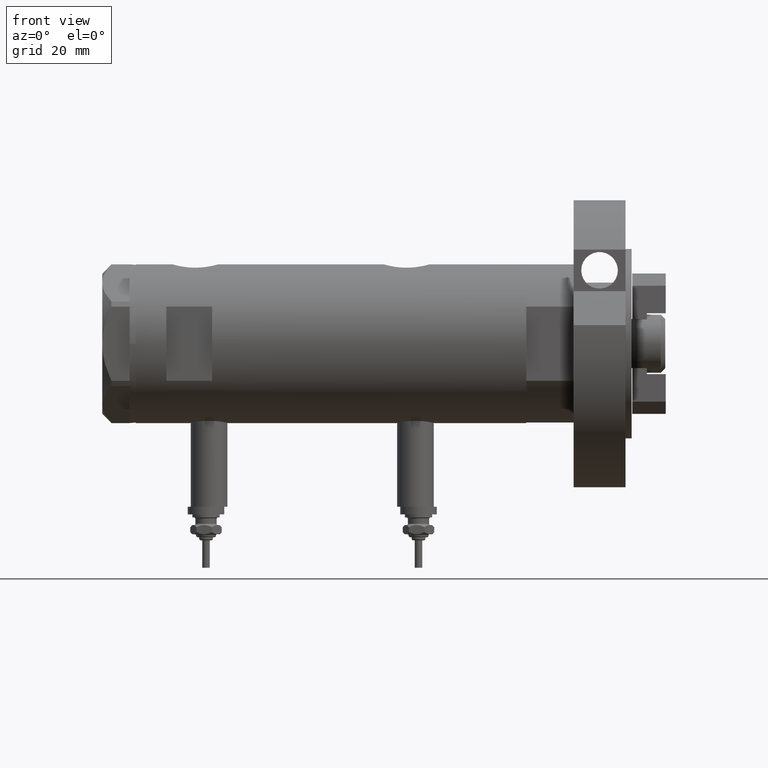
[diagram: clean part render]
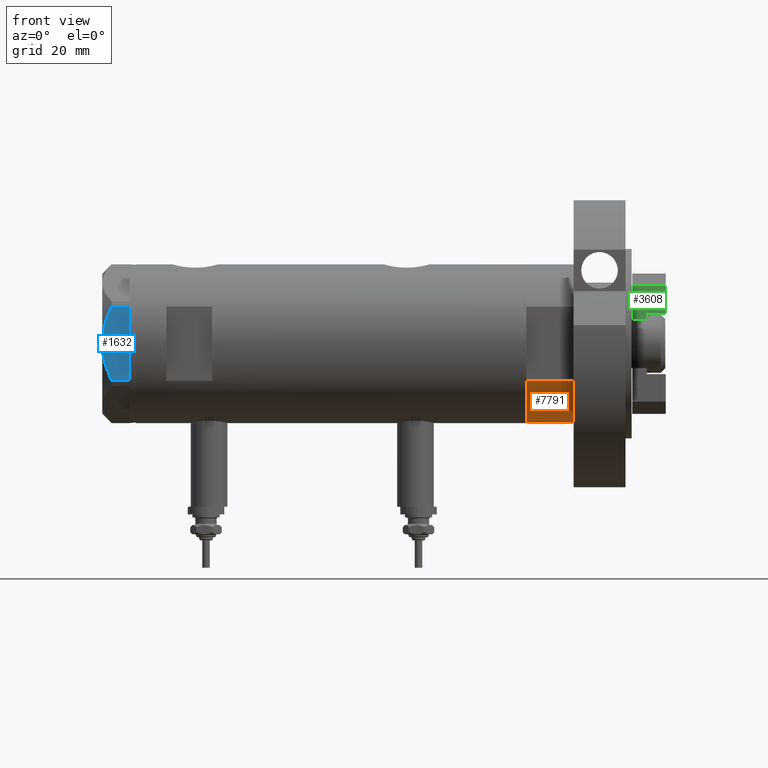
[diagram: same view with three faces highlighted in distinct colors, each labeled with its STEP entity id]
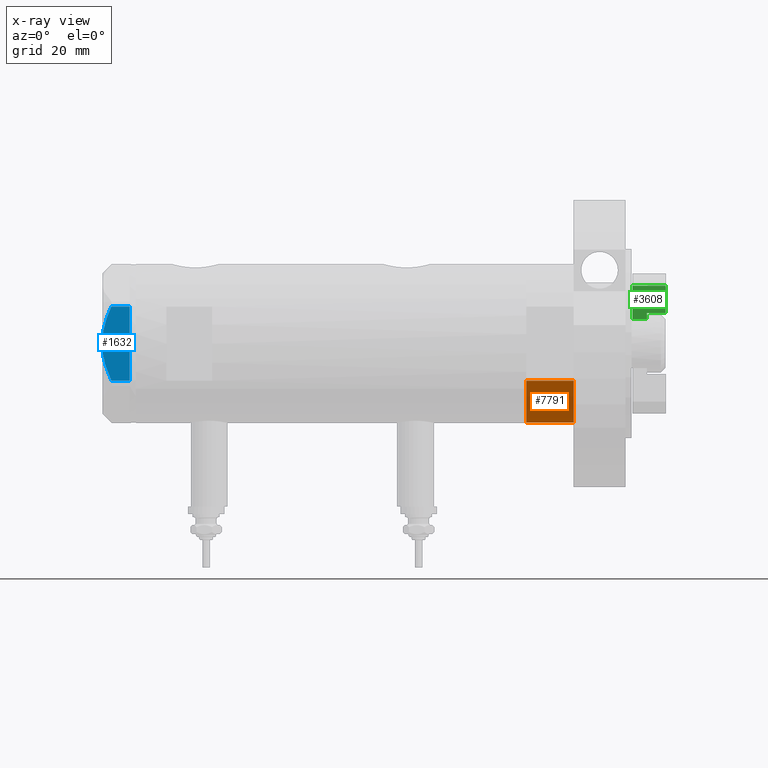
[diagram: x-ray of the same camera — body ghosted, the three highlighted faces saturated]
A machine part, front view with three faces highlighted in distinct colors.
The next image is the same camera in x-ray (body ghosted, the three faces saturated) — at least one of them is partly hidden behind the body in this view.
Their STEP definitions:

[orange] entity #7791 — the highlighted cylindrical surface (partial cylindrical patch) has radius 26 mm, axis along (-1, -0, 0).
#119 = AXIS2_PLACEMENT_3D ( 'NONE', #2990, #4516, #4435 ) ;
#154 = FACE_OUTER_BOUND ( 'NONE', #4499, .T. ) ;
#162 = ORIENTED_EDGE ( 'NONE', *, *, #4951, .F. ) ;
#253 = DIRECTION ( 'NONE',  ( -0.000000000000000000, -0.000000000000000000, 1.000000000000000000 ) ) ;
#562 = CARTESIAN_POINT ( 'NONE',  ( 12.12435565298215323, -22.99999999999999645, 15.50000000000000000 ) ) ;
#647 = DIRECTION ( 'NONE',  ( -1.000000000000000000, 0.000000000000000000, 0.000000000000000000 ) ) ;
#911 = LINE ( 'NONE', #3587, #5529 ) ;
#1189 = VERTEX_POINT ( 'NONE', #2438 ) ;
#1429 = CYLINDRICAL_SURFACE ( 'NONE', #6132, 26.00000000000000355 ) ;
#1453 = EDGE_CURVE ( 'NONE', #1189, #1968, #1991, .T. ) ;
#1519 = CIRCLE ( 'NONE', #119, 26.00000000000000355 ) ;
#1533 = ORIENTED_EDGE ( 'NONE', *, *, #1453, .T. ) ;
#1968 = VERTEX_POINT ( 'NONE', #4178 ) ;
#1991 = CIRCLE ( 'NONE', #7190, 26.00000000000000355 ) ;
#2438 = CARTESIAN_POINT ( 'NONE',  ( 12.12435565298215323, -22.99999999999999645, 0.000000000000000000 ) ) ;
#2990 = CARTESIAN_POINT ( 'NONE',  ( 0.000000000000000000, 0.000000000000000000, 15.50000000000000000 ) ) ;
#3274 = VERTEX_POINT ( 'NONE', #5771 ) ;
#3424 = ORIENTED_EDGE ( 'NONE', *, *, #8653, .F. ) ;
#3587 = CARTESIAN_POINT ( 'NONE',  ( 12.12435565298215323, -22.99999999999999645, 0.000000000000000000 ) ) ;
#4145 = DIRECTION ( 'NONE',  ( 0.000000000000000000, 0.000000000000000000, 1.000000000000000000 ) ) ;
#4178 = CARTESIAN_POINT ( 'NONE',  ( 12.12435565298214080, 23.00000000000000355, 0.000000000000000000 ) ) ;
#4435 = DIRECTION ( 'NONE',  ( 1.000000000000000000, 0.000000000000000000, 0.000000000000000000 ) ) ;
#4499 = EDGE_LOOP ( 'NONE', ( #3424, #162, #1533, #5266 ) ) ;
#4516 = DIRECTION ( 'NONE',  ( 0.000000000000000000, 0.000000000000000000, 1.000000000000000000 ) ) ;
#4951 = EDGE_CURVE ( 'NONE', #1189, #6178, #911, .T. ) ;
#5266 = ORIENTED_EDGE ( 'NONE', *, *, #5384, .T. ) ;
#5384 = EDGE_CURVE ( 'NONE', #1968, #3274, #7015, .T. ) ;
#5478 = CARTESIAN_POINT ( 'NONE',  ( 0.000000000000000000, 0.000000000000000000, 15.50000000000000000 ) ) ;
#5529 = VECTOR ( 'NONE', #253, 1000.000000000000000 ) ;
#5771 = CARTESIAN_POINT ( 'NONE',  ( 12.12435565298214790, 23.00000000000000355, 15.50000000000000000 ) ) ;
#6132 = AXIS2_PLACEMENT_3D ( 'NONE', #5478, #7499, #647 ) ;
#6178 = VERTEX_POINT ( 'NONE', #562 ) ;
#7015 = LINE ( 'NONE', #8327, #7642 ) ;
#7190 = AXIS2_PLACEMENT_3D ( 'NONE', #7534, #4145, #8147 ) ;
#7499 = DIRECTION ( 'NONE',  ( -0.000000000000000000, -0.000000000000000000, -1.000000000000000000 ) ) ;
#7534 = CARTESIAN_POINT ( 'NONE',  ( 0.000000000000000000, 0.000000000000000000, 0.000000000000000000 ) ) ;
#7642 = VECTOR ( 'NONE', #8500, 1000.000000000000000 ) ;
#7791 = ADVANCED_FACE ( 'NONE', ( #154 ), #1429, .T. ) ;
#8147 = DIRECTION ( 'NONE',  ( 1.000000000000000000, 0.000000000000000000, 0.000000000000000000 ) ) ;
#8327 = CARTESIAN_POINT ( 'NONE',  ( 12.12435565298215323, 23.00000000000000355, 0.000000000000000000 ) ) ;
#8500 = DIRECTION ( 'NONE',  ( -0.000000000000000000, -0.000000000000000000, 1.000000000000000000 ) ) ;
#8653 = EDGE_CURVE ( 'NONE', #6178, #3274, #1519, .T. ) ;

[blue] entity #1632 — the highlighted planar face has unit normal (-0, 1, -0).
#40 = LINE ( 'NONE', #2728, #1749 ) ;
#64 = CARTESIAN_POINT ( 'NONE',  ( -22.99999999999991829, -8.252113629125268801, 7.581642062680223226 ) ) ;
#148 = CARTESIAN_POINT ( 'NONE',  ( -22.99999999999993960, -2.643615312305158671, 8.854304560636265364 ) ) ;
#242 = CARTESIAN_POINT ( 'NONE',  ( -22.99999999999995026, -1.063773509315737442, 8.981438083606830602 ) ) ;
#551 = CARTESIAN_POINT ( 'NONE',  ( -23.00000000000004619, -8.112498833180673323E-14, 9.000000000000000000 ) ) ;
#632 = DIRECTION ( 'NONE',  ( 3.527173405730720141E-15, -1.000000000000000000, 0.000000000000000000 ) ) ;
#768 = CARTESIAN_POINT ( 'NONE',  ( -22.99999999999993960, -2.119709279061923191, 8.908535212173198659 ) ) ;
#1020 = AXIS2_PLACEMENT_3D ( 'NONE', #4281, #2345, #6310 ) ;
#1027 = VECTOR ( 'NONE', #7949, 1000.000000000000000 ) ;
#1218 = CARTESIAN_POINT ( 'NONE',  ( -22.99999999999997513, 8.748091966971378142, 7.396818978284571244 ) ) ;
#1381 = CARTESIAN_POINT ( 'NONE',  ( -22.99999999999991118, -10.22738952213794761, 6.832470313674783746 ) ) ;
#1421 = VECTOR ( 'NONE', #632, 1000.000000000000000 ) ;
#1600 = FACE_OUTER_BOUND ( 'NONE', #7715, .T. ) ;
#1632 = ADVANCED_FACE ( 'NONE', ( #1600 ), #3006, .F. ) ;
#1749 = VECTOR ( 'NONE', #2064, 1000.000000000000000 ) ;
#1752 = CARTESIAN_POINT ( 'NONE',  ( -22.99999999999998934, 11.20825071633916359, 6.428173306378450746 ) ) ;
#1756 = CARTESIAN_POINT ( 'NONE',  ( -22.99999999999999289, 12.15905619136133176, 9.000000000000000000 ) ) ;
#2064 = DIRECTION ( 'NONE',  ( 0.000000000000000000, 0.000000000000000000, 1.000000000000000000 ) ) ;
#2220 = CARTESIAN_POINT ( 'NONE',  ( -22.99999999999990763, -12.15905619136147564, 5.983800287807627072 ) ) ;
#2259 = CARTESIAN_POINT ( 'NONE',  ( -22.99999999999992895, -5.228918809624124364, 8.433337033849854336 ) ) ;
#2338 = B_SPLINE_CURVE_WITH_KNOTS ( 'NONE', 3,
 ( #551, #3224, #242, #768, #148, #5566, #2259, #3530, #64, #3576, #1381, #5473, #3444, #2220 ),
 .UNSPECIFIED., .F., .F.,
 ( 4, 2, 2, 2, 2, 2, 4 ),
 ( 0.04777139595992690307, 0.04934380568070229761, 0.05091621540147769215, 0.05406103484302848122, 0.05720585428457927030, 0.05877826400535466483, 0.06035067372613005937 ),
 .UNSPECIFIED. ) ;
#2345 = DIRECTION ( 'NONE',  ( 1.000000000000000000, 3.527173405730720141E-15, -0.000000000000000000 ) ) ;
#2593 = ORIENTED_EDGE ( 'NONE', *, *, #2700, .F. ) ;
#2606 = DIRECTION ( 'NONE',  ( 3.527173405730720141E-15, -1.000000000000000000, 0.000000000000000000 ) ) ;
#2668 = CARTESIAN_POINT ( 'NONE',  ( -22.99999999999995381, 2.122900714018063795, 9.000000000000092371 ) ) ;
#2700 = EDGE_CURVE ( 'NONE', #6689, #5888, #5118, .T. ) ;
#2728 = CARTESIAN_POINT ( 'NONE',  ( -22.99999999999990763, -12.15905619136147386, 9.000000000000000000 ) ) ;
#2829 = VECTOR ( 'NONE', #2606, 1000.000000000000000 ) ;
#3006 = PLANE ( 'NONE',  #1020 ) ;
#3092 = EDGE_CURVE ( 'NONE', #4749, #4423, #7925, .T. ) ;
#3116 = EDGE_CURVE ( 'NONE', #4423, #7495, #4625, .T. ) ;
#3224 = CARTESIAN_POINT ( 'NONE',  ( -22.99999999999995737, -0.5295934231897764244, 9.000000000000092371 ) ) ;
#3444 = CARTESIAN_POINT ( 'NONE',  ( -22.99999999999990763, -11.68282849742335827, 6.206372352695425754 ) ) ;
#3509 = CARTESIAN_POINT ( 'NONE',  ( -23.00000000000004619, -8.112498833180673323E-14, 9.000000000000000000 ) ) ;
#3530 = CARTESIAN_POINT ( 'NONE',  ( -22.99999999999992184, -7.253003311474388148, 7.903276810347638737 ) ) ;
#3576 = CARTESIAN_POINT ( 'NONE',  ( -22.99999999999991829, -9.734726261263297431, 7.028924700095662281 ) ) ;
#3658 = EDGE_CURVE ( 'NONE', #6588, #4749, #7650, .T. ) ;
#3861 = CARTESIAN_POINT ( 'NONE',  ( -22.99999999999999289, 12.12435565298215856, 0.000000000000000000 ) ) ;
#3890 = CARTESIAN_POINT ( 'NONE',  ( -22.99999999999996803, 7.239756182922199024, 7.892186063422847120 ) ) ;
#3892 = VERTEX_POINT ( 'NONE', #6548 ) ;
#3917 = EDGE_CURVE ( 'NONE', #6689, #6588, #5273, .T. ) ;
#4106 = CARTESIAN_POINT ( 'NONE',  ( -22.99999999999990763, -12.12435565298232021, 0.000000000000000000 ) ) ;
#4202 = ORIENTED_EDGE ( 'NONE', *, *, #3658, .T. ) ;
#4281 = CARTESIAN_POINT ( 'NONE',  ( -22.99999999999999645, 13.27905619136132032, 9.000000000000000000 ) ) ;
#4349 = CARTESIAN_POINT ( 'NONE',  ( -22.99999999999999645, 13.27905619136132032, 0.000000000000000000 ) ) ;
#4423 = VERTEX_POINT ( 'NONE', #4106 ) ;
#4558 = CARTESIAN_POINT ( 'NONE',  ( -22.99999999999999289, 12.15905619136133176, 5.983800287807616414 ) ) ;
#4625 = LINE ( 'NONE', #7311, #1421 ) ;
#4749 = VERTEX_POINT ( 'NONE', #3861 ) ;
#4787 = ORIENTED_EDGE ( 'NONE', *, *, #5797, .T. ) ;
#5118 = B_SPLINE_CURVE_WITH_KNOTS ( 'NONE', 3,
 ( #4558, #1752, #8432, #1218, #5931, #3890, #7945, #6021, #2668, #7333 ),
 .UNSPECIFIED., .F., .F.,
 ( 4, 2, 2, 2, 4 ),
 ( 0.03516523594057416324, 0.03831677594541234300, 0.03989254594783143981, 0.04146831595025052969, 0.04777139595992690307 ),
 .UNSPECIFIED. ) ;
#5247 = CARTESIAN_POINT ( 'NONE',  ( -22.99999999999999645, 13.27905619136132032, 0.000000000000000000 ) ) ;
#5273 = LINE ( 'NONE', #1756, #1027 ) ;
#5280 = EDGE_CURVE ( 'NONE', #5888, #3892, #2338, .T. ) ;
#5473 = CARTESIAN_POINT ( 'NONE',  ( -22.99999999999991118, -11.20155944044816287, 6.421102682632757741 ) ) ;
#5566 = CARTESIAN_POINT ( 'NONE',  ( -22.99999999999993250, -4.203926054641964782, 8.641681223122507305 ) ) ;
#5754 = ORIENTED_EDGE ( 'NONE', *, *, #5280, .F. ) ;
#5797 = EDGE_CURVE ( 'NONE', #7495, #3892, #40, .T. ) ;
#5888 = VERTEX_POINT ( 'NONE', #3509 ) ;
#5931 = CARTESIAN_POINT ( 'NONE',  ( -22.99999999999998224, 8.246028007352361300, 7.571131808646907935 ) ) ;
#6021 = CARTESIAN_POINT ( 'NONE',  ( -22.99999999999996803, 4.194757081058972936, 8.703000351525203016 ) ) ;
#6172 = CARTESIAN_POINT ( 'NONE',  ( -22.99999999999999289, 12.15905619136133176, 5.983800287807616414 ) ) ;
#6310 = DIRECTION ( 'NONE',  ( -3.527173405730720141E-15, 1.000000000000000000, 0.000000000000000000 ) ) ;
#6548 = CARTESIAN_POINT ( 'NONE',  ( -22.99999999999990763, -12.15905619136147564, 5.983800287807627072 ) ) ;
#6588 = VERTEX_POINT ( 'NONE', #7312 ) ;
#6680 = ORIENTED_EDGE ( 'NONE', *, *, #3092, .T. ) ;
#6689 = VERTEX_POINT ( 'NONE', #6172 ) ;
#7035 = DIRECTION ( 'NONE',  ( 3.527173405730720141E-15, -1.000000000000000000, 0.000000000000000000 ) ) ;
#7311 = CARTESIAN_POINT ( 'NONE',  ( -22.99999999999999645, 13.27905619136132032, 0.000000000000000000 ) ) ;
#7312 = CARTESIAN_POINT ( 'NONE',  ( -22.99999999999999289, 12.15905619136133176, 0.000000000000000000 ) ) ;
#7333 = CARTESIAN_POINT ( 'NONE',  ( -23.00000000000004619, -8.112498833180673323E-14, 9.000000000000000000 ) ) ;
#7398 = ORIENTED_EDGE ( 'NONE', *, *, #3917, .T. ) ;
#7495 = VERTEX_POINT ( 'NONE', #7553 ) ;
#7553 = CARTESIAN_POINT ( 'NONE',  ( -22.99999999999990763, -12.15905619136147386, 0.000000000000000000 ) ) ;
#7650 = LINE ( 'NONE', #4349, #8171 ) ;
#7715 = EDGE_LOOP ( 'NONE', ( #2593, #7398, #4202, #6680, #8619, #4787, #5754 ) ) ;
#7925 = LINE ( 'NONE', #5247, #2829 ) ;
#7945 = CARTESIAN_POINT ( 'NONE',  ( -22.99999999999997158, 6.734330413511419700, 8.039389741252668031 ) ) ;
#7949 = DIRECTION ( 'NONE',  ( 0.000000000000000000, 0.000000000000000000, -1.000000000000000000 ) ) ;
#8171 = VECTOR ( 'NONE', #7035, 1000.000000000000000 ) ;
#8432 = CARTESIAN_POINT ( 'NONE',  ( -22.99999999999998579, 10.23890159976122050, 6.840812428290914404 ) ) ;
#8619 = ORIENTED_EDGE ( 'NONE', *, *, #3116, .T. ) ;

[green] entity #3608 — the highlighted planar face has unit normal (0, 1, -0).
#26 = AXIS2_PLACEMENT_3D ( 'NONE', #7734, #5636, #2904 ) ;
#28 = CARTESIAN_POINT ( 'NONE',  ( 7.500000000000000000, -10.49999999999999822, 0.000000000000000000 ) ) ;
#74 = DIRECTION ( 'NONE',  ( -1.000000000000000000, 0.000000000000000000, 0.000000000000000000 ) ) ;
#156 = LINE ( 'NONE', #1517, #7873 ) ;
#319 = VERTEX_POINT ( 'NONE', #2581 ) ;
#400 = DIRECTION ( 'NONE',  ( -0.000000000000000000, -0.000000000000000000, -1.000000000000000000 ) ) ;
#485 = LINE ( 'NONE', #2052, #6340 ) ;
#524 = EDGE_CURVE ( 'NONE', #319, #2786, #156, .T. ) ;
#752 = EDGE_CURVE ( 'NONE', #6342, #319, #485, .T. ) ;
#927 = EDGE_CURVE ( 'NONE', #4161, #3591, #7460, .T. ) ;
#928 = CARTESIAN_POINT ( 'NONE',  ( 5.499999999999999112, -10.49999999999999822, 11.00000000000000178 ) ) ;
#1010 = ORIENTED_EDGE ( 'NONE', *, *, #524, .T. ) ;
#1210 = ORIENTED_EDGE ( 'NONE', *, *, #752, .T. ) ;
#1517 = CARTESIAN_POINT ( 'NONE',  ( -7.499999999999999112, -10.49999999999999822, 0.000000000000000000 ) ) ;
#1888 = VECTOR ( 'NONE', #4262, 1000.000000000000000 ) ;
#2040 = EDGE_CURVE ( 'NONE', #6342, #6605, #6916, .T. ) ;
#2052 = CARTESIAN_POINT ( 'NONE',  ( -3.500000000000002220, -10.49999999999999822, 11.00000000000000000 ) ) ;
#2067 = CARTESIAN_POINT ( 'NONE',  ( 5.500000000000000000, -10.49999999999999822, 4.799999999999998934 ) ) ;
#2118 = EDGE_LOOP ( 'NONE', ( #2636, #6971, #5568, #8022, #1210, #1010 ) ) ;
#2547 = VECTOR ( 'NONE', #74, 1000.000000000000000 ) ;
#2581 = CARTESIAN_POINT ( 'NONE',  ( -3.500000000000002220, -10.49999999999999822, 0.000000000000000000 ) ) ;
#2636 = ORIENTED_EDGE ( 'NONE', *, *, #8691, .F. ) ;
#2786 = VERTEX_POINT ( 'NONE', #28 ) ;
#2904 = DIRECTION ( 'NONE',  ( 0.000000000000000000, -0.000000000000000000, 1.000000000000000000 ) ) ;
#3071 = LINE ( 'NONE', #928, #1888 ) ;
#3591 = VERTEX_POINT ( 'NONE', #2067 ) ;
#3608 = ADVANCED_FACE ( 'NONE', ( #3644 ), #4216, .F. ) ;
#3644 = FACE_OUTER_BOUND ( 'NONE', #2118, .T. ) ;
#3731 = CARTESIAN_POINT ( 'NONE',  ( 7.500000000000000000, -10.49999999999999822, 11.00000000000000000 ) ) ;
#3739 = DIRECTION ( 'NONE',  ( 1.000000000000000000, 0.000000000000000000, 0.000000000000000000 ) ) ;
#4161 = VERTEX_POINT ( 'NONE', #5673 ) ;
#4216 = PLANE ( 'NONE',  #26 ) ;
#4242 = DIRECTION ( 'NONE',  ( 1.000000000000000000, 0.000000000000000000, 0.000000000000000000 ) ) ;
#4262 = DIRECTION ( 'NONE',  ( -1.398970545142586541E-16, 0.000000000000000000, 1.000000000000000000 ) ) ;
#4805 = VECTOR ( 'NONE', #3739, 1000.000000000000000 ) ;
#5034 = VECTOR ( 'NONE', #400, 1000.000000000000000 ) ;
#5484 = CARTESIAN_POINT ( 'NONE',  ( -3.500000000000002220, -10.49999999999999822, 11.00000000000000000 ) ) ;
#5568 = ORIENTED_EDGE ( 'NONE', *, *, #5973, .T. ) ;
#5636 = DIRECTION ( 'NONE',  ( 0.000000000000000000, 1.000000000000000000, 0.000000000000000000 ) ) ;
#5673 = CARTESIAN_POINT ( 'NONE',  ( 7.500000000000000000, -10.49999999999999822, 4.799999999999998934 ) ) ;
#5973 = EDGE_CURVE ( 'NONE', #3591, #6605, #3071, .T. ) ;
#6303 = CARTESIAN_POINT ( 'NONE',  ( -7.499999999999999112, -10.49999999999999822, 11.00000000000000000 ) ) ;
#6340 = VECTOR ( 'NONE', #8485, 1000.000000000000000 ) ;
#6342 = VERTEX_POINT ( 'NONE', #5484 ) ;
#6605 = VERTEX_POINT ( 'NONE', #6743 ) ;
#6743 = CARTESIAN_POINT ( 'NONE',  ( 5.499999999999999112, -10.49999999999999822, 11.00000000000000000 ) ) ;
#6845 = CARTESIAN_POINT ( 'NONE',  ( -7.499999999999999112, -10.49999999999999822, 4.799999999999998934 ) ) ;
#6916 = LINE ( 'NONE', #6303, #4805 ) ;
#6971 = ORIENTED_EDGE ( 'NONE', *, *, #927, .T. ) ;
#7079 = LINE ( 'NONE', #3731, #5034 ) ;
#7460 = LINE ( 'NONE', #6845, #2547 ) ;
#7734 = CARTESIAN_POINT ( 'NONE',  ( -7.499999999999999112, -10.49999999999999822, 11.00000000000000000 ) ) ;
#7873 = VECTOR ( 'NONE', #4242, 1000.000000000000000 ) ;
#8022 = ORIENTED_EDGE ( 'NONE', *, *, #2040, .F. ) ;
#8485 = DIRECTION ( 'NONE',  ( 0.000000000000000000, 0.000000000000000000, -1.000000000000000000 ) ) ;
#8691 = EDGE_CURVE ( 'NONE', #4161, #2786, #7079, .T. ) ;